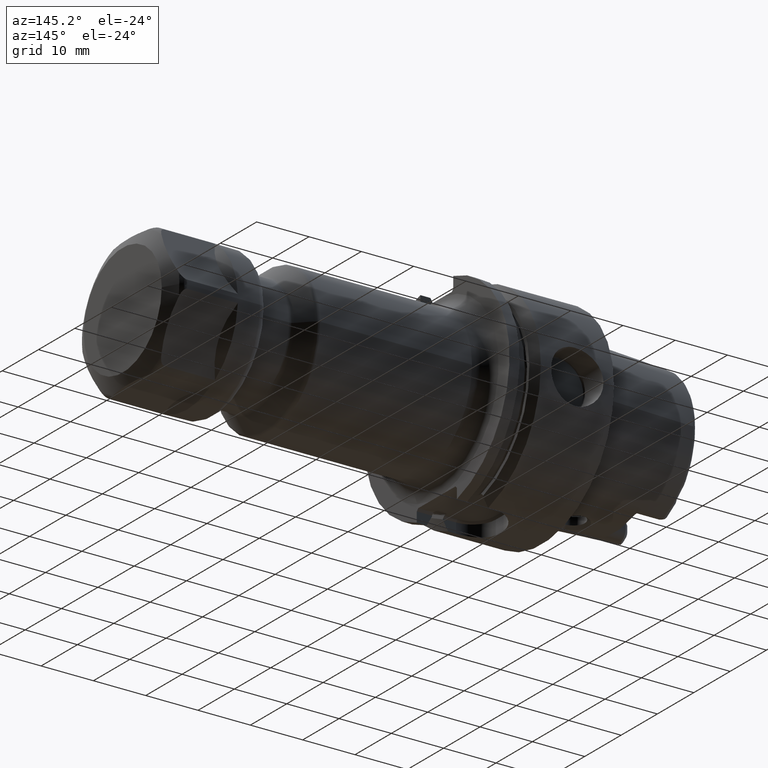
[diagram: clean part render]
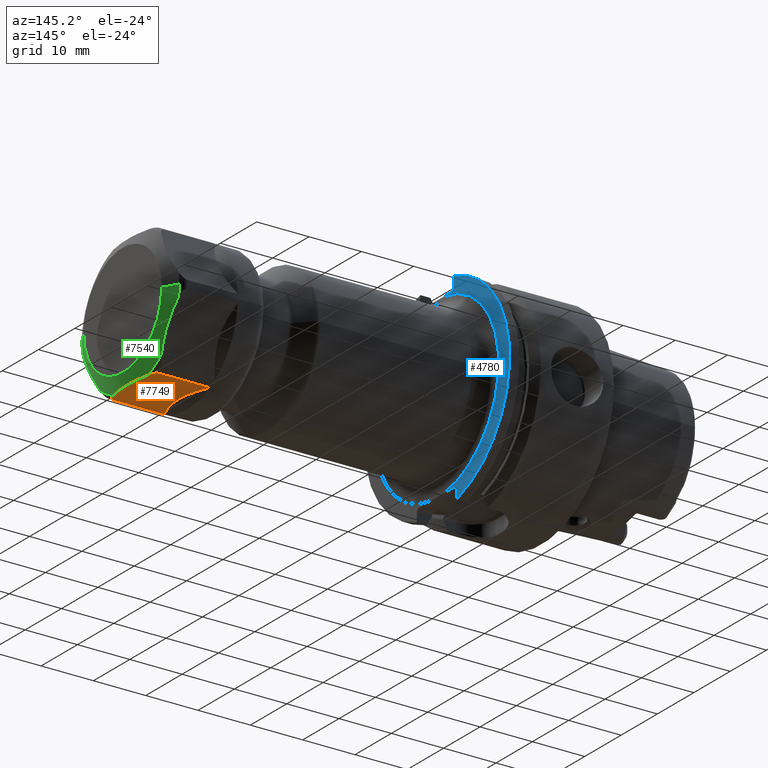
[diagram: same view with three faces highlighted in distinct colors, each labeled with its STEP entity id]
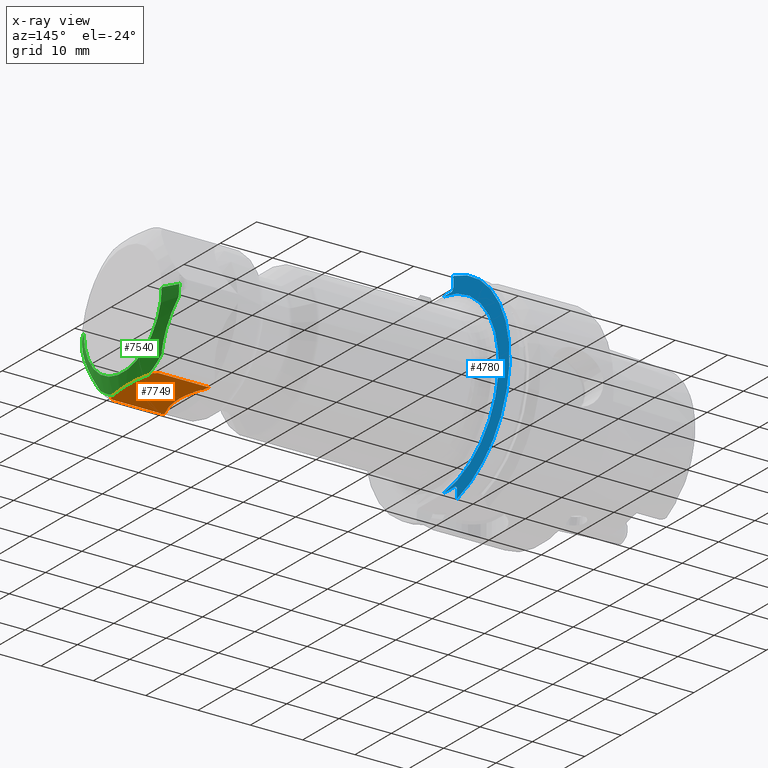
[diagram: x-ray of the same camera — body ghosted, the three highlighted faces saturated]
A machine part, auxiliary view with three faces highlighted in distinct colors.
The next image is the same camera in x-ray (body ghosted, the three faces saturated) — at least one of them is partly hidden behind the body in this view.
Their STEP definitions:

[orange] entity #7749 — the highlighted planar face has unit normal (0, 0, 1).
#6923=CARTESIAN_POINT('',(1.628445554338E1,-4.758216577669E0,-1.25E1));
#6924=CARTESIAN_POINT('',(1.644888995402E1,-3.957639929005E0,-1.25E1));
#6925=CARTESIAN_POINT('',(1.670318968294E1,-2.364269791047E0,-1.25E1));
#6926=CARTESIAN_POINT('',(1.683288207547E1,5.894560252869E-4,-1.25E1));
#6927=CARTESIAN_POINT('',(1.670310415631E1,2.364813039561E0,-1.25E1));
#6928=CARTESIAN_POINT('',(1.644884551611E1,3.957856282460E0,-1.25E1));
#6929=CARTESIAN_POINT('',(1.628445554338E1,4.758216577669E0,-1.25E1));
#7023=CARTESIAN_POINT('',(1.628445554338E1,4.758216577669E0,-1.25E1));
#7024=CARTESIAN_POINT('',(1.625780514735E1,4.887968523483E0,-1.25E1));
#7025=CARTESIAN_POINT('',(1.619635457926E1,5.141602008187E0,-1.25E1));
#7026=CARTESIAN_POINT('',(1.606561669937E1,5.515629625230E0,-1.25E1));
#7027=CARTESIAN_POINT('',(1.589737600801E1,5.841380073054E0,-1.25E1));
#7028=CARTESIAN_POINT('',(1.569295978880E1,6.098496038599E0,-1.25E1));
#7029=CARTESIAN_POINT('',(1.545738513995E1,6.265053289239E0,-1.25E1));
#7030=CARTESIAN_POINT('',(1.528945671766E1,6.304760106459E0,-1.25E1));
#7031=CARTESIAN_POINT('',(1.520192378865E1,6.304760106459E0,-1.25E1));
#7043=CARTESIAN_POINT('',(1.520192378865E1,-6.304760106459E0,-1.25E1));
#7044=CARTESIAN_POINT('',(1.529096662636E1,-6.304760106459E0,-1.25E1));
#7045=CARTESIAN_POINT('',(1.546146335283E1,-6.263924243604E0,-1.25E1));
#7046=CARTESIAN_POINT('',(1.570142638899E1,-6.090799069305E0,-1.25E1));
#7047=CARTESIAN_POINT('',(1.590512360841E1,-5.828820593103E0,-1.25E1));
#7048=CARTESIAN_POINT('',(1.607010427330E1,-5.504238892291E0,-1.25E1));
#7049=CARTESIAN_POINT('',(1.619774346523E1,-5.136026796860E0,-1.25E1));
#7050=CARTESIAN_POINT('',(1.625821277607E1,-4.885983914320E0,-1.25E1));
#7051=CARTESIAN_POINT('',(1.628445554338E1,-4.758216577669E0,-1.25E1));
#7178=CARTESIAN_POINT('',(6.999998794328E0,-1.986758806456E-4,
-1.250497818479E1));
#7179=CARTESIAN_POINT('',(6.999995386402E0,-1.083552144487E-1,
-1.250497818479E1));
#7180=CARTESIAN_POINT('',(7.011782449164E0,-3.323384141906E-1,
-1.249768961639E1));
#7181=CARTESIAN_POINT('',(6.991282432065E0,-6.947568549463E-1,
-1.250061906543E1));
#7182=CARTESIAN_POINT('',(6.965721694483E0,-1.081329068169E0,
-1.249983412187E1));
#7183=CARTESIAN_POINT('',(6.922875351362E0,-1.498043433085E0,
-1.250004444709E1));
#7184=CARTESIAN_POINT('',(6.861884217492E0,-1.948292958935E0,
-1.249998808977E1));
#7185=CARTESIAN_POINT('',(6.778307623772E0,-2.434583974992E0,
-1.250000319384E1));
#7186=CARTESIAN_POINT('',(6.667915939400E0,-2.960308612542E0,
-1.249999913487E1));
#7187=CARTESIAN_POINT('',(6.525148358033E0,-3.530599340508E0,
-1.250000026669E1));
#7188=CARTESIAN_POINT('',(6.344629653681E0,-4.147369585013E0,
-1.249999979838E1));
#7189=CARTESIAN_POINT('',(6.120966968902E0,-4.812008049205E0,
-1.250000053980E1));
#7190=CARTESIAN_POINT('',(5.848034096261E0,-5.527648946893E0,
-1.249999804241E1));
#7191=CARTESIAN_POINT('',(5.629244177607E0,-6.040161300141E0,
-1.250000420783E1));
#7192=CARTESIAN_POINT('',(5.510095954753E0,-6.304759140730E0,
-1.250000420783E1));
#7194=DIRECTION('',(9.999999999999E-1,-9.964367159688E-8,4.341630987369E-7));
#7195=VECTOR('',#7194,9.691827833895E0);
#7196=CARTESIAN_POINT('',(5.510095954753E0,-6.304759140730E0,
-1.250000420783E1));
#7197=LINE('',#7196,#7195);
#7198=DIRECTION('',(-1.E0,0.E0,0.E0));
#7199=VECTOR('',#7198,9.691824900383E0);
#7200=CARTESIAN_POINT('',(1.520192378865E1,6.304760106459E0,-1.25E1));
#7201=LINE('',#7200,#7199);
#7202=CARTESIAN_POINT('',(5.510098888264E0,6.304760106459E0,-1.25E1));
#7203=CARTESIAN_POINT('',(5.628841325804E0,6.041063634220E0,-1.25E1));
#7204=CARTESIAN_POINT('',(5.846986479544E0,5.530158187536E0,-1.249999999528E1));
#7205=CARTESIAN_POINT('',(6.119413711240E0,4.816268093814E0,-1.250000001653E1));
#7206=CARTESIAN_POINT('',(6.342901567371E0,4.152810405697E0,-1.249999993859E1));
#7207=CARTESIAN_POINT('',(6.523488842305E0,3.536673008155E0,-1.250000022912E1));
#7208=CARTESIAN_POINT('',(6.666467115183E0,2.966599910294E0,-1.249999914493E1));
#7209=CARTESIAN_POINT('',(6.777190694805E0,2.440435295210E0,-1.250000319114E1));
#7210=CARTESIAN_POINT('',(6.860942679123E0,1.954353884047E0,-1.249998809049E1));
#7211=CARTESIAN_POINT('',(6.922096017902E0,1.504569556370E0,-1.250004444690E1));
#7212=CARTESIAN_POINT('',(6.965204285677E0,1.087421014254E0,-1.249983412192E1));
#7213=CARTESIAN_POINT('',(6.991058489792E0,6.992781139853E-1,
-1.250061906542E1));
#7214=CARTESIAN_POINT('',(7.011781137860E0,3.334458988776E-1,
-1.249768961640E1));
#7215=CARTESIAN_POINT('',(7.000002208658E0,1.081611357337E-1,
-1.250497818479E1));
#7216=CARTESIAN_POINT('',(6.999998794328E0,-1.986758806456E-4,
-1.250497818479E1));
#7459=VERTEX_POINT('',#6923);
#7460=VERTEX_POINT('',#6929);
#7471=VERTEX_POINT('',#7031);
#7472=VERTEX_POINT('',#7043);
#7481=CARTESIAN_POINT('',(5.510019594414E0,6.304795814642E0,-1.250007080131E1));
#7482=CARTESIAN_POINT('',(5.510019594414E0,-6.304795289710E0,
-1.250006976046E1));
#7483=VERTEX_POINT('',#7481);
#7484=VERTEX_POINT('',#7482);
#7500=VERTEX_POINT('',#7216);
#7733=CARTESIAN_POINT('',(1.78E1,7.216878364870E0,-1.25E1));
#7734=DIRECTION('',(0.E0,0.E0,1.E0));
#7735=DIRECTION('',(0.E0,-1.E0,0.E0));
#7736=AXIS2_PLACEMENT_3D('',#7733,#7734,#7735);
#7737=PLANE('',#7736);
#7739=ORIENTED_EDGE('',*,*,#7738,.T.);
#7740=ORIENTED_EDGE('',*,*,#7583,.T.);
#7741=ORIENTED_EDGE('',*,*,#7632,.T.);
#7742=ORIENTED_EDGE('',*,*,#7534,.T.);
#7743=ORIENTED_EDGE('',*,*,#7619,.T.);
#7744=ORIENTED_EDGE('',*,*,#7587,.T.);
#7746=ORIENTED_EDGE('',*,*,#7745,.T.);
#7747=EDGE_LOOP('',(#7739,#7740,#7741,#7742,#7743,#7744,#7746));
#7748=FACE_OUTER_BOUND('',#7747,.F.);
#7749=ADVANCED_FACE('',(#7748),#7737,.F.);
#6930=B_SPLINE_CURVE_WITH_KNOTS('',3,(#6923,#6924,#6925,#6926,#6927,#6928,
#6929),.UNSPECIFIED.,.F.,.F.,(4,1,1,1,4),(0.E0,2.5E-1,5.E-1,7.5E-1,1.E0),
.UNSPECIFIED.);
#7032=B_SPLINE_CURVE_WITH_KNOTS('',3,(#7023,#7024,#7025,#7026,#7027,#7028,#7029,
#7030,#7031),.UNSPECIFIED.,.F.,.F.,(4,1,1,1,1,1,4),(0.E0,1.666666666667E-1,
3.333333333333E-1,5.E-1,6.666666666667E-1,8.333333333333E-1,1.E0),
.UNSPECIFIED.);
#7052=B_SPLINE_CURVE_WITH_KNOTS('',3,(#7043,#7044,#7045,#7046,#7047,#7048,#7049,
#7050,#7051),.UNSPECIFIED.,.F.,.F.,(4,1,1,1,1,1,4),(0.E0,1.666666666667E-1,
3.333333333333E-1,5.E-1,6.666666666667E-1,8.333333333333E-1,1.E0),
.UNSPECIFIED.);
#7193=B_SPLINE_CURVE_WITH_KNOTS('',3,(#7178,#7179,#7180,#7181,#7182,#7183,#7184,
#7185,#7186,#7187,#7188,#7189,#7190,#7191,#7192),.UNSPECIFIED.,.F.,.F.,(4,1,1,1,
1,1,1,1,1,1,1,1,4),(0.E0,8.333333333333E-2,1.666666666667E-1,2.5E-1,
3.333333333333E-1,4.166666666667E-1,5.E-1,5.833333333333E-1,6.666666666667E-1,
7.5E-1,8.333333333333E-1,9.166666666667E-1,1.E0),.UNSPECIFIED.);
#7217=B_SPLINE_CURVE_WITH_KNOTS('',3,(#7202,#7203,#7204,#7205,#7206,#7207,#7208,
#7209,#7210,#7211,#7212,#7213,#7214,#7215,#7216),.UNSPECIFIED.,.F.,.F.,(4,1,1,1,
1,1,1,1,1,1,1,1,4),(0.E0,8.333333333333E-2,1.666666666667E-1,2.5E-1,
3.333333333333E-1,4.166666666667E-1,5.E-1,5.833333333333E-1,6.666666666667E-1,
7.5E-1,8.333333333333E-1,9.166666666667E-1,1.E0),.UNSPECIFIED.);
#7534=EDGE_CURVE('',#7459,#7460,#6930,.T.);
#7583=EDGE_CURVE('',#7484,#7472,#7197,.T.);
#7587=EDGE_CURVE('',#7471,#7483,#7201,.T.);
#7619=EDGE_CURVE('',#7460,#7471,#7032,.T.);
#7632=EDGE_CURVE('',#7472,#7459,#7052,.T.);
#7738=EDGE_CURVE('',#7500,#7484,#7193,.T.);
#7745=EDGE_CURVE('',#7483,#7500,#7217,.T.);

[blue] entity #4780 — the highlighted planar face has unit normal (1, 0, 0).
#1030=CARTESIAN_POINT('',(1.995E1,0.E0,0.E0));
#1031=DIRECTION('',(1.E0,0.E0,0.E0));
#1032=DIRECTION('',(0.E0,2.75875E-1,-9.611935207725E-1));
#1033=AXIS2_PLACEMENT_3D('',#1030,#1031,#1032);
#1377=CARTESIAN_POINT('',(1.995E1,0.E0,0.E0));
#1378=DIRECTION('',(-1.E0,0.E0,0.E0));
#1379=DIRECTION('',(0.E0,1.083053861726E-1,9.941176707644E-1));
#1380=AXIS2_PLACEMENT_3D('',#1377,#1378,#1379);
#1382=DIRECTION('',(0.E0,9.999999999999E-1,3.960828701964E-7));
#1383=VECTOR('',#1382,2.273297719004E0);
#1384=CARTESIAN_POINT('',(1.995E1,1.841202280996E0,1.689999909959E1));
#1385=LINE('',#1384,#1383);
#1386=DIRECTION('',(0.E0,0.E0,-1.E0));
#1387=VECTOR('',#1386,2.183821230703E0);
#1388=CARTESIAN_POINT('',(1.995E1,4.5145E0,1.948382123070E1));
#1389=LINE('',#1388,#1387);
#1390=DIRECTION('',(0.E0,0.E0,1.E0));
#1391=VECTOR('',#1390,1.923870415450E0);
#1392=CARTESIAN_POINT('',(1.995E1,5.5175E0,-1.922387041545E1));
#1393=LINE('',#1392,#1391);
#1394=DIRECTION('',(0.E0,-9.999999999999E-1,-3.372620090037E-7));
#1395=VECTOR('',#1394,3.276310651064E0);
#1396=CARTESIAN_POINT('',(1.995E1,5.1175E0,-1.69E1));
#1397=LINE('',#1396,#1395);
#1492=CARTESIAN_POINT('',(1.995E1,1.841202280996E0,1.689999909959E1));
#1888=DIRECTION('',(0.E0,7.071067811865E-1,-7.071067811865E-1));
#1889=VECTOR('',#1888,5.656854249492E-1);
#1890=CARTESIAN_POINT('',(1.995E1,5.1175E0,-1.69E1));
#1891=LINE('',#1890,#1889);
#2021=DIRECTION('',(0.E0,-7.071067811865E-1,-7.071067811865E-1));
#2022=VECTOR('',#2021,5.656854249492E-1);
#2023=CARTESIAN_POINT('',(1.995E1,4.5145E0,1.73E1));
#2024=LINE('',#2023,#2022);
#3075=CARTESIAN_POINT('',(1.995E1,4.5145E0,1.73E1));
#3076=CARTESIAN_POINT('',(1.995E1,4.1145E0,1.69E1));
#3077=VERTEX_POINT('',#3075);
#3078=VERTEX_POINT('',#3076);
#3103=CARTESIAN_POINT('',(1.995E1,5.1175E0,-1.69E1));
#3104=CARTESIAN_POINT('',(1.995E1,5.5175E0,-1.73E1));
#3105=VERTEX_POINT('',#3103);
#3106=VERTEX_POINT('',#3104);
#3189=CARTESIAN_POINT('',(1.995E1,4.5145E0,1.948382123070E1));
#3190=VERTEX_POINT('',#3189);
#3195=CARTESIAN_POINT('',(1.995E1,5.5175E0,-1.922387041545E1));
#3196=VERTEX_POINT('',#3195);
#3277=VERTEX_POINT('',#1492);
#3278=CARTESIAN_POINT('',(1.995E1,1.841189348936E0,-1.690000110498E1));
#3279=VERTEX_POINT('',#3278);
#4760=CARTESIAN_POINT('',(1.995E1,0.E0,0.E0));
#4761=DIRECTION('',(1.E0,0.E0,0.E0));
#4762=DIRECTION('',(0.E0,-1.E0,0.E0));
#4763=AXIS2_PLACEMENT_3D('',#4760,#4761,#4762);
#4764=PLANE('',#4763);
#4765=ORIENTED_EDGE('',*,*,#4755,.F.);
#4767=ORIENTED_EDGE('',*,*,#4766,.T.);
#4769=ORIENTED_EDGE('',*,*,#4768,.F.);
#4771=ORIENTED_EDGE('',*,*,#4770,.F.);
#4772=ORIENTED_EDGE('',*,*,#4387,.F.);
#4774=ORIENTED_EDGE('',*,*,#4773,.T.);
#4776=ORIENTED_EDGE('',*,*,#4775,.F.);
#4777=ORIENTED_EDGE('',*,*,#4702,.T.);
#4778=EDGE_LOOP('',(#4765,#4767,#4769,#4771,#4772,#4774,#4776,#4777));
#4779=FACE_OUTER_BOUND('',#4778,.F.);
#4780=ADVANCED_FACE('',(#4779),#4764,.T.);
#1034=CIRCLE('',#1033,2.E1);
#1381=CIRCLE('',#1380,1.7E1);
#4387=EDGE_CURVE('',#3196,#3190,#1034,.T.);
#4702=EDGE_CURVE('',#3105,#3279,#1397,.T.);
#4755=EDGE_CURVE('',#3277,#3279,#1381,.T.);
#4766=EDGE_CURVE('',#3277,#3078,#1385,.T.);
#4768=EDGE_CURVE('',#3077,#3078,#2024,.T.);
#4770=EDGE_CURVE('',#3190,#3077,#1389,.T.);
#4773=EDGE_CURVE('',#3196,#3106,#1393,.T.);
#4775=EDGE_CURVE('',#3105,#3106,#1891,.T.);

[green] entity #7540 — the highlighted conical surface has half-angle 60 deg.
#6879=CARTESIAN_POINT('',(1.628445554338E1,-1.320442583614E1,
-2.129263567031E0));
#6880=CARTESIAN_POINT('',(1.644888995402E1,-1.280413751181E1,
-2.822583282450E0));
#6881=CARTESIAN_POINT('',(1.670318968294E1,-1.200745244283E1,
-4.202482299553E0));
#6882=CARTESIAN_POINT('',(1.683288207547E1,-1.082502281929E1,
-6.250510483892E0));
#6883=CARTESIAN_POINT('',(1.670310415631E1,-9.642911027525E0,
-8.297988167461E0));
#6884=CARTESIAN_POINT('',(1.644884551611E1,-8.846389406075E0,
-9.677604085138E0));
#6885=CARTESIAN_POINT('',(1.628445554338E1,-8.446209258471E0,
-1.037073643297E1));
#6887=CARTESIAN_POINT('',(1.628445554338E1,0.E0,0.E0));
#6888=DIRECTION('',(-1.E0,0.E0,0.E0));
#6889=DIRECTION('',(0.E0,-9.872467914871E-1,-1.591972760397E-1));
#6890=AXIS2_PLACEMENT_3D('',#6887,#6888,#6889);
#6892=DIRECTION('',(-5.E-1,-8.660254037844E-1,5.910846101776E-13));
#6893=VECTOR('',#6892,3.031088913235E0);
#6894=CARTESIAN_POINT('',(1.78E1,-1.075E1,0.E0));
#6895=LINE('',#6894,#6893);
#6896=CARTESIAN_POINT('',(1.78E1,0.E0,0.E0));
#6897=DIRECTION('',(-1.E0,0.E0,0.E0));
#6898=DIRECTION('',(0.E0,1.E0,0.E0));
#6899=AXIS2_PLACEMENT_3D('',#6896,#6897,#6898);
#6901=DIRECTION('',(-5.E-1,8.660254037844E-1,-5.912097978319E-13));
#6902=VECTOR('',#6901,3.031088913235E0);
#6903=CARTESIAN_POINT('',(1.78E1,1.075E1,0.E0));
#6904=LINE('',#6903,#6902);
#6905=CARTESIAN_POINT('',(1.628445554338E1,0.E0,0.E0));
#6906=DIRECTION('',(-1.E0,0.E0,0.E0));
#6907=DIRECTION('',(0.E0,1.E0,0.E0));
#6908=AXIS2_PLACEMENT_3D('',#6905,#6906,#6907);
#6910=CARTESIAN_POINT('',(1.628445554338E1,8.446209258471E0,-1.037073643297E1));
#6911=CARTESIAN_POINT('',(1.644888995402E1,8.846497582803E0,-9.677416717550E0));
#6912=CARTESIAN_POINT('',(1.670318968294E1,9.643182651782E0,-8.297517700447E0));
#6913=CARTESIAN_POINT('',(1.683288207547E1,1.082561227532E1,-6.249489516108E0));
#6914=CARTESIAN_POINT('',(1.670310415631E1,1.200772406709E1,-4.202011832539E0));
#6915=CARTESIAN_POINT('',(1.644884551611E1,1.280424568854E1,-2.822395914862E0));
#6916=CARTESIAN_POINT('',(1.628445554338E1,1.320442583614E1,-2.129263567031E0));
#6918=CARTESIAN_POINT('',(1.628445554338E1,0.E0,0.E0));
#6919=DIRECTION('',(-1.E0,0.E0,0.E0));
#6920=DIRECTION('',(0.E0,6.314922810072E-1,-7.753821632127E-1));
#6921=AXIS2_PLACEMENT_3D('',#6918,#6919,#6920);
#6923=CARTESIAN_POINT('',(1.628445554338E1,-4.758216577669E0,-1.25E1));
#6924=CARTESIAN_POINT('',(1.644888995402E1,-3.957639929005E0,-1.25E1));
#6925=CARTESIAN_POINT('',(1.670318968294E1,-2.364269791047E0,-1.25E1));
#6926=CARTESIAN_POINT('',(1.683288207547E1,5.894560252869E-4,-1.25E1));
#6927=CARTESIAN_POINT('',(1.670310415631E1,2.364813039561E0,-1.25E1));
#6928=CARTESIAN_POINT('',(1.644884551611E1,3.957856282460E0,-1.25E1));
#6929=CARTESIAN_POINT('',(1.628445554338E1,4.758216577669E0,-1.25E1));
#6931=CARTESIAN_POINT('',(1.628445554338E1,0.E0,0.E0));
#6932=DIRECTION('',(-1.E0,0.E0,0.E0));
#6933=DIRECTION('',(0.E0,-3.557545104799E-1,-9.345794392523E-1));
#6934=AXIS2_PLACEMENT_3D('',#6931,#6932,#6933);
#7429=CARTESIAN_POINT('',(1.78E1,1.075E1,0.E0));
#7430=CARTESIAN_POINT('',(1.78E1,-1.075E1,0.E0));
#7431=VERTEX_POINT('',#7429);
#7432=VERTEX_POINT('',#7430);
#7441=CARTESIAN_POINT('',(1.628445554338E1,1.337499999999E1,
-1.791131800065E-12));
#7442=VERTEX_POINT('',#7441);
#7443=CARTESIAN_POINT('',(1.628445554338E1,-1.337499999999E1,
1.790752345154E-12));
#7444=VERTEX_POINT('',#7443);
#7455=VERTEX_POINT('',#6879);
#7456=VERTEX_POINT('',#6885);
#7457=VERTEX_POINT('',#6910);
#7458=VERTEX_POINT('',#6916);
#7459=VERTEX_POINT('',#6923);
#7460=VERTEX_POINT('',#6929);
#7514=CARTESIAN_POINT('',(1.704222777169E1,0.E0,0.E0));
#7515=DIRECTION('',(-1.E0,0.E0,0.E0));
#7516=DIRECTION('',(0.E0,1.E0,0.E0));
#7517=AXIS2_PLACEMENT_3D('',#7514,#7515,#7516);
#7518=CONICAL_SURFACE('',#7517,1.20625E1,6.E1);
#7520=ORIENTED_EDGE('',*,*,#7519,.F.);
#7522=ORIENTED_EDGE('',*,*,#7521,.T.);
#7524=ORIENTED_EDGE('',*,*,#7523,.F.);
#7525=ORIENTED_EDGE('',*,*,#7507,.F.);
#7527=ORIENTED_EDGE('',*,*,#7526,.T.);
#7529=ORIENTED_EDGE('',*,*,#7528,.T.);
#7531=ORIENTED_EDGE('',*,*,#7530,.F.);
#7533=ORIENTED_EDGE('',*,*,#7532,.T.);
#7535=ORIENTED_EDGE('',*,*,#7534,.F.);
#7537=ORIENTED_EDGE('',*,*,#7536,.T.);
#7538=EDGE_LOOP('',(#7520,#7522,#7524,#7525,#7527,#7529,#7531,#7533,#7535,
#7537));
#7539=FACE_OUTER_BOUND('',#7538,.F.);
#7540=ADVANCED_FACE('',(#7539),#7518,.T.);
#6886=B_SPLINE_CURVE_WITH_KNOTS('',3,(#6879,#6880,#6881,#6882,#6883,#6884,
#6885),.UNSPECIFIED.,.F.,.F.,(4,1,1,1,4),(0.E0,2.5E-1,5.E-1,7.5E-1,1.E0),
.UNSPECIFIED.);
#6891=CIRCLE('',#6890,1.3375E1);
#6900=CIRCLE('',#6899,1.075E1);
#6909=CIRCLE('',#6908,1.3375E1);
#6917=B_SPLINE_CURVE_WITH_KNOTS('',3,(#6910,#6911,#6912,#6913,#6914,#6915,
#6916),.UNSPECIFIED.,.F.,.F.,(4,1,1,1,4),(0.E0,2.5E-1,5.E-1,7.5E-1,1.E0),
.UNSPECIFIED.);
#6922=CIRCLE('',#6921,1.3375E1);
#6930=B_SPLINE_CURVE_WITH_KNOTS('',3,(#6923,#6924,#6925,#6926,#6927,#6928,
#6929),.UNSPECIFIED.,.F.,.F.,(4,1,1,1,4),(0.E0,2.5E-1,5.E-1,7.5E-1,1.E0),
.UNSPECIFIED.);
#6935=CIRCLE('',#6934,1.3375E1);
#7507=EDGE_CURVE('',#7431,#7432,#6900,.T.);
#7519=EDGE_CURVE('',#7455,#7456,#6886,.T.);
#7521=EDGE_CURVE('',#7455,#7444,#6891,.T.);
#7523=EDGE_CURVE('',#7432,#7444,#6895,.T.);
#7526=EDGE_CURVE('',#7431,#7442,#6904,.T.);
#7528=EDGE_CURVE('',#7442,#7458,#6909,.T.);
#7530=EDGE_CURVE('',#7457,#7458,#6917,.T.);
#7532=EDGE_CURVE('',#7457,#7460,#6922,.T.);
#7534=EDGE_CURVE('',#7459,#7460,#6930,.T.);
#7536=EDGE_CURVE('',#7459,#7456,#6935,.T.);